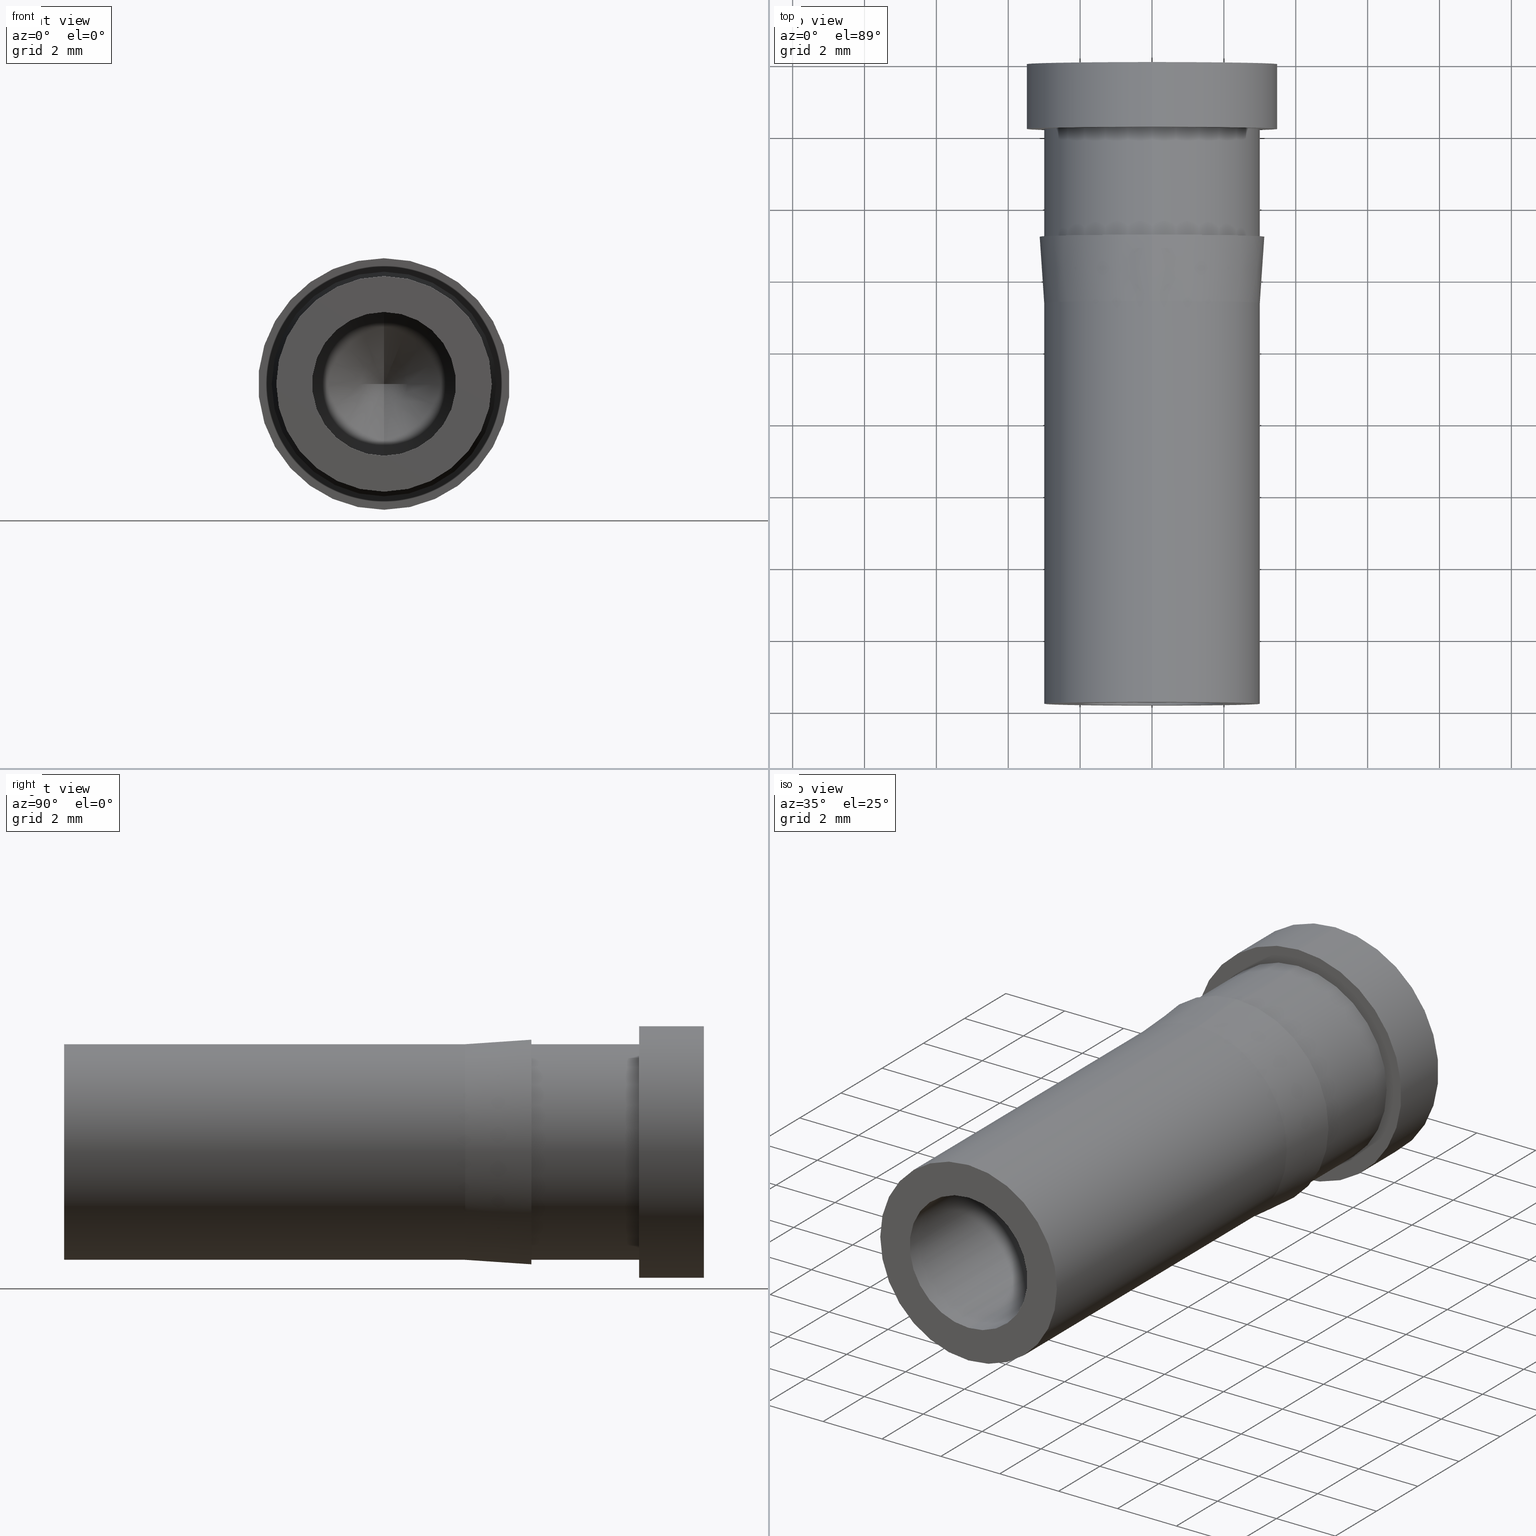
[diagram: canonical four-view strip — front | top / right | iso, engineering-drawing reading convention]
A machine part, canonical four-view strip (front | top / right | iso — engineering-drawing reading convention). The complete STEP part file that produces these views, byte-faithful:
ISO-10303-21;
HEADER;
FILE_DESCRIPTION (( 'STEP AP214' ),
    '1' );
FILE_NAME ('IF-PI-17.8-7.00.STEP',
    '2020-06-08T07:00:58',
    ( '' ),
    ( '' ),
    'SwSTEP 2.0',
    'SolidWorks 2020',
    '' );
FILE_SCHEMA (( 'AUTOMOTIVE_DESIGN' ));
ENDSEC;

DATA;
#1 = DIRECTION ( 'NONE',  ( -0.0000000000000000000, -1.000000000000000000, -0.0000000000000000000 ) ) ;
#2 = AXIS2_PLACEMENT_3D ( 'NONE', #331, #398, #437 ) ;
#3 = CYLINDRICAL_SURFACE ( 'NONE', #92, 1.999999999999999556 ) ;
#4 = DIRECTION ( 'NONE',  ( 0.0000000000000000000, 0.0000000000000000000, -1.000000000000000000 ) ) ;
#5 =( LENGTH_UNIT ( ) NAMED_UNIT ( * ) SI_UNIT ( .MILLI., .METRE. ) );
#6 = EDGE_CURVE ( 'NONE', #196, #360, #18, .T. ) ;
#7 =( GEOMETRIC_REPRESENTATION_CONTEXT ( 3 ) GLOBAL_UNCERTAINTY_ASSIGNED_CONTEXT ( ( #54 ) ) GLOBAL_UNIT_ASSIGNED_CONTEXT ( ( #5, #49, #249 ) ) REPRESENTATION_CONTEXT ( 'NONE', 'WORKASPACE' ) );
#8 = ORIENTED_EDGE ( 'NONE', *, *, #346, .F. ) ;
#9 = AXIS2_PLACEMENT_3D ( 'NONE', #42, #224, #11 ) ;
#10 = SHAPE_DEFINITION_REPRESENTATION ( #108, #191 ) ;
#11 = DIRECTION ( 'NONE',  ( 0.0000000000000000000, 0.0000000000000000000, 1.000000000000000000 ) ) ;
#12 = ORIENTED_EDGE ( 'NONE', *, *, #173, .T. ) ;
#13 = CARTESIAN_POINT ( 'NONE',  ( 0.0000000000000000000, -17.80000000000000071, 0.0000000000000000000 ) ) ;
#14 = VERTEX_POINT ( 'NONE', #291 ) ;
#15 = DIRECTION ( 'NONE',  ( 0.0000000000000000000, 0.0000000000000000000, -1.000000000000000000 ) ) ;
#16 = ORIENTED_EDGE ( 'NONE', *, *, #150, .F. ) ;
#17 = VECTOR ( 'NONE', #181, 1000.000000000000000 ) ;
#18 = CIRCLE ( 'NONE', #404, 2.999999999999999556 ) ;
#19 = ADVANCED_FACE ( 'NONE', ( #88 ), #204, .F. ) ;
#20 = AXIS2_PLACEMENT_3D ( 'NONE', #100, #268, #303 ) ;
#21 = AXIS2_PLACEMENT_3D ( 'NONE', #106, #388, #40 ) ;
#22 = VERTEX_POINT ( 'NONE', #357 ) ;
#23 = CARTESIAN_POINT ( 'NONE',  ( 3.673940397442059868E-16, -17.80000000000000071, 3.000000000000000000 ) ) ;
#24 = VERTEX_POINT ( 'NONE', #428 ) ;
#25 = CARTESIAN_POINT ( 'NONE',  ( 0.0000000000000000000, -6.641797671233707234, 0.0000000000000000000 ) ) ;
#26 = EDGE_CURVE ( 'NONE', #22, #134, #184, .T. ) ;
#27 = ORIENTED_EDGE ( 'NONE', *, *, #367, .T. ) ;
#28 = AXIS2_PLACEMENT_3D ( 'NONE', #286, #41, #424 ) ;
#29 = DIRECTION ( 'NONE',  ( 0.0000000000000000000, 0.0000000000000000000, -1.000000000000000000 ) ) ;
#30 = CIRCLE ( 'NONE', #229, 3.499999999999999112 ) ;
#31 = VERTEX_POINT ( 'NONE', #119 ) ;
#32 = LINE ( 'NONE', #451, #452 ) ;
#33 = CARTESIAN_POINT ( 'NONE',  ( 0.0000000000000000000, -4.800000000000000711, 3.125000000000000000 ) ) ;
#34 = CARTESIAN_POINT ( 'NONE',  ( 0.0000000000000000000, -1.799999999999999600, 0.0000000000000000000 ) ) ;
#35 = AXIS2_PLACEMENT_3D ( 'NONE', #221, #293, #395 ) ;
#36 = LINE ( 'NONE', #391, #17 ) ;
#37 = DIRECTION ( 'NONE',  ( 0.0000000000000000000, 0.0000000000000000000, -1.000000000000000000 ) ) ;
#38 = EDGE_CURVE ( 'NONE', #113, #22, #397, .T. ) ;
#39 = DIRECTION ( 'NONE',  ( -0.0000000000000000000, -1.000000000000000000, -0.0000000000000000000 ) ) ;
#40 = DIRECTION ( 'NONE',  ( 0.0000000000000000000, 0.0000000000000000000, -1.000000000000000000 ) ) ;
#41 = DIRECTION ( 'NONE',  ( 0.0000000000000000000, 0.0000000000000000000, 1.000000000000000000 ) ) ;
#42 = CARTESIAN_POINT ( 'NONE',  ( 0.0000000000000000000, -4.800000000000000711, 0.0000000000000000000 ) ) ;
#43 = ORIENTED_EDGE ( 'NONE', *, *, #279, .T. ) ;
#44 = DIRECTION ( 'NONE',  ( 0.0000000000000000000, 0.0000000000000000000, -1.000000000000000000 ) ) ;
#45 = ORIENTED_EDGE ( 'NONE', *, *, #427, .T. ) ;
#46 = CIRCLE ( 'NONE', #130, 2.999999999999998668 ) ;
#47 = FACE_OUTER_BOUND ( 'NONE', #198, .T. ) ;
#48 = CARTESIAN_POINT ( 'NONE',  ( 0.0000000000000000000, -4.800000000000000711, 3.125000000000000000 ) ) ;
#49 =( NAMED_UNIT ( * ) PLANE_ANGLE_UNIT ( ) SI_UNIT ( $, .RADIAN. ) );
#50 = VERTEX_POINT ( 'NONE', #326 ) ;
#51 = EDGE_CURVE ( 'NONE', #22, #113, #65, .T. ) ;
#52 = CARTESIAN_POINT ( 'NONE',  ( -2.999999999999999556, -4.800000000000000711, 0.0000000000000000000 ) ) ;
#53 = DIRECTION ( 'NONE',  ( 0.0000000000000000000, 1.000000000000000000, 0.0000000000000000000 ) ) ;
#54 = UNCERTAINTY_MEASURE_WITH_UNIT (LENGTH_MEASURE( 1.000000000000000082E-05 ), #5, 'distance_accuracy_value', 'NONE');
#55 = ORIENTED_EDGE ( 'NONE', *, *, #38, .F. ) ;
#56 = VECTOR ( 'NONE', #136, 1000.000000000000000 ) ;
#57 = CARTESIAN_POINT ( 'NONE',  ( 0.0000000000000000000, -17.80000000000000071, -3.000000000000000000 ) ) ;
#58 = EDGE_LOOP ( 'NONE', ( #380, #231 ) ) ;
#59 = ADVANCED_FACE ( 'NONE', ( #263 ), #112, .T. ) ;
#60 = CARTESIAN_POINT ( 'NONE',  ( 0.0000000000000000000, -11.29999999999999893, -1.999999999999999112 ) ) ;
#61 = ORIENTED_EDGE ( 'NONE', *, *, #182, .T. ) ;
#62 = PLANE ( 'NONE',  #218 ) ;
#63 = ORIENTED_EDGE ( 'NONE', *, *, #150, .T. ) ;
#64 = DIRECTION ( 'NONE',  ( -0.0000000000000000000, -1.000000000000000000, -0.0000000000000000000 ) ) ;
#65 = CIRCLE ( 'NONE', #313, 1.999999999999999112 ) ;
#66 = DIRECTION ( 'NONE',  ( -0.0000000000000000000, -1.000000000000000000, -0.0000000000000000000 ) ) ;
#67 = DIRECTION ( 'NONE',  ( 0.0000000000000000000, 0.0000000000000000000, -1.000000000000000000 ) ) ;
#68 = DIRECTION ( 'NONE',  ( -0.0000000000000000000, -1.000000000000000000, -0.0000000000000000000 ) ) ;
#69 = ADVANCED_FACE ( 'NONE', ( #393 ), #324, .F. ) ;
#70 = DIRECTION ( 'NONE',  ( 0.0000000000000000000, 1.000000000000000000, 0.0000000000000000000 ) ) ;
#71 = EDGE_CURVE ( 'NONE', #76, #164, #363, .T. ) ;
#72 = CARTESIAN_POINT ( 'NONE',  ( 0.0000000000000000000, -17.80000000000000071, -3.499999999999999556 ) ) ;
#73 = DIRECTION ( 'NONE',  ( 0.0000000000000000000, 0.0000000000000000000, -1.000000000000000000 ) ) ;
#74 = PRESENTATION_LAYER_ASSIGNMENT (  '', '', ( #248 ) ) ;
#75 = ORIENTED_EDGE ( 'NONE', *, *, #77, .F. ) ;
#76 = VERTEX_POINT ( 'NONE', #299 ) ;
#77 = EDGE_CURVE ( 'NONE', #162, #164, #328, .T. ) ;
#78 = MANIFOLD_SOLID_BREP ( '�4.0 (4) Durchmesser Bohrung1', #412 ) ;
#79 = PRODUCT_CONTEXT ( 'NONE', #317, 'mechanical' ) ;
#80 = DIRECTION ( 'NONE',  ( -0.0000000000000000000, -1.000000000000000000, -0.0000000000000000000 ) ) ;
#81 = SURFACE_SIDE_STYLE ('',( #125 ) ) ;
#82 = MECHANICAL_DESIGN_GEOMETRIC_PRESENTATION_REPRESENTATION (  '', ( #248 ), #7 ) ;
#83 = EDGE_LOOP ( 'NONE', ( #343, #308, #225 ) ) ;
#84 = CIRCLE ( 'NONE', #21, 3.000000000000000000 ) ;
#85 = DIRECTION ( 'NONE',  ( -0.0000000000000000000, -1.000000000000000000, -0.0000000000000000000 ) ) ;
#86 = ORIENTED_EDGE ( 'NONE', *, *, #6, .F. ) ;
#87 = DIRECTION ( 'NONE',  ( 0.0000000000000000000, 0.0000000000000000000, -1.000000000000000000 ) ) ;
#88 = FACE_OUTER_BOUND ( 'NONE', #120, .T. ) ;
#89 = ORIENTED_EDGE ( 'NONE', *, *, #295, .T. ) ;
#90 = CARTESIAN_POINT ( 'NONE',  ( 0.0000000000000000000, -4.800000000000000711, 0.0000000000000000000 ) ) ;
#91 = ORIENTED_EDGE ( 'NONE', *, *, #279, .F. ) ;
#92 = AXIS2_PLACEMENT_3D ( 'NONE', #144, #415, #104 ) ;
#93 = AXIS2_PLACEMENT_3D ( 'NONE', #307, #202, #411 ) ;
#94 = DIRECTION ( 'NONE',  ( 1.049727191138617956E-16, -0.5150380749100550437, 0.8571673007021117785 ) ) ;
#95 = EDGE_LOOP ( 'NONE', ( #430, #189, #132, #8 ) ) ;
#96 = FACE_OUTER_BOUND ( 'NONE', #405, .T. ) ;
#97 = EDGE_LOOP ( 'NONE', ( #89, #300, #16, #213 ) ) ;
#98 = LINE ( 'NONE', #23, #384 ) ;
#99 = AXIS2_PLACEMENT_3D ( 'NONE', #197, #64, #309 ) ;
#100 = CARTESIAN_POINT ( 'NONE',  ( 0.0000000000000000000, -17.80000000000000071, 0.0000000000000000000 ) ) ;
#101 = AXIS2_PLACEMENT_3D ( 'NONE', #34, #68, #67 ) ;
#102 = ADVANCED_FACE ( 'NONE', ( #370 ), #260, .T. ) ;
#103 = CARTESIAN_POINT ( 'NONE',  ( 0.0000000000000000000, -1.799999999999999600, -3.000000000000000000 ) ) ;
#104 = DIRECTION ( 'NONE',  ( 0.0000000000000000000, 0.0000000000000000000, -1.000000000000000000 ) ) ;
#105 = ADVANCED_FACE ( 'NONE', ( #167 ), #163, .F. ) ;
#106 = CARTESIAN_POINT ( 'NONE',  ( 0.0000000000000000000, -1.799999999999999600, 0.0000000000000000000 ) ) ;
#107 = PRESENTATION_LAYER_ASSIGNMENT (  '', '', ( #287 ) ) ;
#108 = PRODUCT_DEFINITION_SHAPE ( 'NONE', 'NONE',  #161 ) ;
#109 = CARTESIAN_POINT ( 'NONE',  ( 0.0000000000000000000, -4.800000000000000711, 0.0000000000000000000 ) ) ;
#110 = CYLINDRICAL_SURFACE ( 'NONE', #296, 2.999999999999999112 ) ;
#111 = PRODUCT_DEFINITION_FORMATION_WITH_SPECIFIED_SOURCE ( 'ANY', '', #281, .NOT_KNOWN. ) ;
#112 = CONICAL_SURFACE ( 'NONE', #9, 3.125000000000000000, 0.06776455880020616773 ) ;
#113 = VERTEX_POINT ( 'NONE', #236 ) ;
#114 = FACE_OUTER_BOUND ( 'NONE', #97, .T. ) ;
#115 =( NAMED_UNIT ( * ) SI_UNIT ( $, .STERADIAN. ) SOLID_ANGLE_UNIT ( ) );
#116 = ORIENTED_EDGE ( 'NONE', *, *, #169, .F. ) ;
#117 = DIRECTION ( 'NONE',  ( 0.0000000000000000000, 0.9977048607670542246, 0.06771270783090126144 ) ) ;
#118 = DIRECTION ( 'NONE',  ( 0.0000000000000000000, -1.000000000000000000, -0.0000000000000000000 ) ) ;
#119 = CARTESIAN_POINT ( 'NONE',  ( 3.750480822388768843E-16, -6.641797671233707234, -2.999999999999999556 ) ) ;
#120 = EDGE_LOOP ( 'NONE', ( #445, #407, #438 ) ) ;
#121 = AXIS2_PLACEMENT_3D ( 'NONE', #25, #170, #311 ) ;
#122 = AXIS2_PLACEMENT_3D ( 'NONE', #149, #366, #401 ) ;
#123 = SURFACE_STYLE_FILL_AREA ( #323 ) ;
#124 = ORIENTED_EDGE ( 'NONE', *, *, #71, .T. ) ;
#125 = SURFACE_STYLE_FILL_AREA ( #425 ) ;
#126 = EDGE_CURVE ( 'NONE', #329, #134, #239, .T. ) ;
#127 = ORIENTED_EDGE ( 'NONE', *, *, #316, .F. ) ;
#128 = FACE_OUTER_BOUND ( 'NONE', #440, .T. ) ;
#129 = ORIENTED_EDGE ( 'NONE', *, *, #180, .T. ) ;
#130 = AXIS2_PLACEMENT_3D ( 'NONE', #199, #446, #339 ) ;
#131 = FACE_BOUND ( 'NONE', #355, .T. ) ;
#132 = ORIENTED_EDGE ( 'NONE', *, *, #367, .F. ) ;
#133 = CARTESIAN_POINT ( 'NONE',  ( 0.0000000000000000000, -6.641797671233707234, 0.0000000000000000000 ) ) ;
#134 = VERTEX_POINT ( 'NONE', #406 ) ;
#135 = EDGE_CURVE ( 'NONE', #50, #269, #46, .T. ) ;
#136 = DIRECTION ( 'NONE',  ( 0.0000000000000000000, -0.5150380749100550437, -0.8571673007021117785 ) ) ;
#137 = AXIS2_PLACEMENT_3D ( 'NONE', #171, #345, #29 ) ;
#138 = DIRECTION ( 'NONE',  ( 0.0000000000000000000, 0.0000000000000000000, 1.000000000000000000 ) ) ;
#139 = DIRECTION ( 'NONE',  ( -0.0000000000000000000, -1.000000000000000000, -0.0000000000000000000 ) ) ;
#140 = EDGE_CURVE ( 'NONE', #162, #31, #306, .T. ) ;
#141 = DIRECTION ( 'NONE',  ( -0.0000000000000000000, -1.000000000000000000, -0.0000000000000000000 ) ) ;
#142 = FACE_BOUND ( 'NONE', #58, .T. ) ;
#143 = VECTOR ( 'NONE', #94, 1000.000000000000000 ) ;
#144 = CARTESIAN_POINT ( 'NONE',  ( 0.0000000000000000000, -17.80000000000000071, 0.0000000000000000000 ) ) ;
#145 = DIRECTION ( 'NONE',  ( -0.0000000000000000000, -1.000000000000000000, -0.0000000000000000000 ) ) ;
#146 = ORIENTED_EDGE ( 'NONE', *, *, #316, .T. ) ;
#147 = VECTOR ( 'NONE', #414, 1000.000000000000000 ) ;
#148 = ORIENTED_EDGE ( 'NONE', *, *, #135, .F. ) ;
#149 = CARTESIAN_POINT ( 'NONE',  ( 0.0000000000000000000, -4.800000000000000711, 0.0000000000000000000 ) ) ;
#150 = EDGE_CURVE ( 'NONE', #400, #24, #30, .T. ) ;
#151 = PLANE ( 'NONE',  #238 ) ;
#152 = DIRECTION ( 'NONE',  ( 0.0000000000000000000, 0.0000000000000000000, -1.000000000000000000 ) ) ;
#153 = UNCERTAINTY_MEASURE_WITH_UNIT (LENGTH_MEASURE( 1.000000000000000082E-05 ), #327, 'distance_accuracy_value', 'NONE');
#154 = FILL_AREA_STYLE_COLOUR ( '', #267 ) ;
#155 = EDGE_LOOP ( 'NONE', ( #378, #185, #61, #86 ) ) ;
#156 = CONICAL_SURFACE ( 'NONE', #179, 1.999999999999999112, 1.029744258676653423 ) ;
#157 = FILL_AREA_STYLE_COLOUR ( '', #450 ) ;
#158 = DIRECTION ( 'NONE',  ( -0.0000000000000000000, -1.000000000000000000, -0.0000000000000000000 ) ) ;
#159 = EDGE_LOOP ( 'NONE', ( #193, #235 ) ) ;
#160 = LINE ( 'NONE', #272, #147 ) ;
#161 = PRODUCT_DEFINITION ( 'UNKNOWN', '', #111, #334 ) ;
#162 = VERTEX_POINT ( 'NONE', #347 ) ;
#163 = CYLINDRICAL_SURFACE ( 'NONE', #20, 1.999999999999999556 ) ;
#164 = VERTEX_POINT ( 'NONE', #33 ) ;
#165 = AXIS2_PLACEMENT_3D ( 'NONE', #390, #283, #277 ) ;
#166 = AXIS2_PLACEMENT_3D ( 'NONE', #435, #53, #138 ) ;
#167 = FACE_OUTER_BOUND ( 'NONE', #168, .T. ) ;
#168 = EDGE_LOOP ( 'NONE', ( #55, #186, #271, #219 ) ) ;
#169 = EDGE_CURVE ( 'NONE', #31, #162, #274, .T. ) ;
#170 = DIRECTION ( 'NONE',  ( -0.0000000000000000000, -1.000000000000000000, -0.0000000000000000000 ) ) ;
#171 = CARTESIAN_POINT ( 'NONE',  ( 0.0000000000000000000, -17.80000000000000071, 0.0000000000000000000 ) ) ;
#172 = DIRECTION ( 'NONE',  ( 0.0000000000000000000, 0.0000000000000000000, -1.000000000000000000 ) ) ;
#173 = EDGE_CURVE ( 'NONE', #371, #196, #98, .T. ) ;
#174 = CARTESIAN_POINT ( 'NONE',  ( 0.0000000000000000000, -17.80000000000000071, -2.999999999999998668 ) ) ;
#175 = ADVANCED_FACE ( 'NONE', ( #96 ), #382, .T. ) ;
#176 = CARTESIAN_POINT ( 'NONE',  ( 0.0000000000000000000, -1.799999999999999600, 0.0000000000000000000 ) ) ;
#177 = CIRCLE ( 'NONE', #432, 3.125000000000000000 ) ;
#178 = PLANE ( 'NONE',  #275 ) ;
#179 = AXIS2_PLACEMENT_3D ( 'NONE', #245, #141, #172 ) ;
#180 = EDGE_CURVE ( 'NONE', #134, #329, #417, .T. ) ;
#181 = DIRECTION ( 'NONE',  ( -0.0000000000000000000, -1.000000000000000000, -0.0000000000000000000 ) ) ;
#182 = EDGE_CURVE ( 'NONE', #325, #360, #234, .T. ) ;
#183 = CARTESIAN_POINT ( 'NONE',  ( 0.0000000000000000000, 0.0000000000000000000, 0.0000000000000000000 ) ) ;
#184 = LINE ( 'NONE', #190, #250 ) ;
#185 = ORIENTED_EDGE ( 'NONE', *, *, #310, .T. ) ;
#186 = ORIENTED_EDGE ( 'NONE', *, *, #208, .T. ) ;
#187 = FACE_OUTER_BOUND ( 'NONE', #200, .T. ) ;
#188 = PRESENTATION_STYLE_ASSIGNMENT (( #254 ) ) ;
#189 = ORIENTED_EDGE ( 'NONE', *, *, #394, .T. ) ;
#190 = CARTESIAN_POINT ( 'NONE',  ( 0.0000000000000000000, -17.80000000000000071, -1.999999999999999556 ) ) ;
#191 = ADVANCED_BREP_SHAPE_REPRESENTATION ( 'IF-PI-17.8-7.00', ( #78, #28 ), #244 ) ;
#192 = CARTESIAN_POINT ( 'NONE',  ( 0.0000000000000000000, -11.29999999999999893, 0.0000000000000000000 ) ) ;
#193 = ORIENTED_EDGE ( 'NONE', *, *, #295, .F. ) ;
#194 = VECTOR ( 'NONE', #442, 1000.000000000000000 ) ;
#195 = DIRECTION ( 'NONE',  ( -0.0000000000000000000, -1.000000000000000000, -0.0000000000000000000 ) ) ;
#196 = VERTEX_POINT ( 'NONE', #379 ) ;
#197 = CARTESIAN_POINT ( 'NONE',  ( 0.0000000000000000000, -17.80000000000000071, 0.0000000000000000000 ) ) ;
#198 = EDGE_LOOP ( 'NONE', ( #426, #338 ) ) ;
#199 = CARTESIAN_POINT ( 'NONE',  ( 0.0000000000000000000, -17.80000000000000071, 0.0000000000000000000 ) ) ;
#200 = EDGE_LOOP ( 'NONE', ( #284, #12, #127, #322 ) ) ;
#201 = DIRECTION ( 'NONE',  ( 0.0000000000000000000, 0.0000000000000000000, -1.000000000000000000 ) ) ;
#202 = DIRECTION ( 'NONE',  ( -0.0000000000000000000, -1.000000000000000000, -0.0000000000000000000 ) ) ;
#203 = CARTESIAN_POINT ( 'NONE',  ( 3.673940397442059868E-16, -1.799999999999999600, 3.000000000000000000 ) ) ;
#204 = CONICAL_SURFACE ( 'NONE', #433, 1.999999999999999112, 1.029744258676653423 ) ;
#205 = FACE_OUTER_BOUND ( 'NONE', #95, .T. ) ;
#206 = DIRECTION ( 'NONE',  ( -0.0000000000000000000, -1.000000000000000000, -0.0000000000000000000 ) ) ;
#207 = DIRECTION ( 'NONE',  ( -0.0000000000000000000, -1.000000000000000000, -0.0000000000000000000 ) ) ;
#208 = EDGE_CURVE ( 'NONE', #113, #329, #32, .T. ) ;
#209 = VECTOR ( 'NONE', #1, 1000.000000000000000 ) ;
#210 = DIRECTION ( 'NONE',  ( -0.0000000000000000000, -1.000000000000000000, -0.0000000000000000000 ) ) ;
#211 = CIRCLE ( 'NONE', #422, 3.000000000000000000 ) ;
#212 = DIRECTION ( 'NONE',  ( -0.0000000000000000000, -1.000000000000000000, -0.0000000000000000000 ) ) ;
#213 = ORIENTED_EDGE ( 'NONE', *, *, #383, .F. ) ;
#214 = EDGE_CURVE ( 'NONE', #289, #22, #449, .T. ) ;
#215 = APPLICATION_PROTOCOL_DEFINITION ( 'draft international standard', 'automotive_design', 1998, #341 ) ;
#216 = AXIS2_PLACEMENT_3D ( 'NONE', #183, #212, #44 ) ;
#217 = EDGE_LOOP ( 'NONE', ( #116, #222, #124, #75 ) ) ;
#218 = AXIS2_PLACEMENT_3D ( 'NONE', #227, #403, #301 ) ;
#219 = ORIENTED_EDGE ( 'NONE', *, *, #26, .F. ) ;
#220 = SURFACE_SIDE_STYLE ('',( #123 ) ) ;
#221 = CARTESIAN_POINT ( 'NONE',  ( 0.0000000000000000000, -2.143131898507868297E-16, 0.0000000000000000000 ) ) ;
#222 = ORIENTED_EDGE ( 'NONE', *, *, #226, .T. ) ;
#223 = CYLINDRICAL_SURFACE ( 'NONE', #273, 3.000000000000000000 ) ;
#224 = DIRECTION ( 'NONE',  ( 0.0000000000000000000, 1.000000000000000000, 0.0000000000000000000 ) ) ;
#225 = ORIENTED_EDGE ( 'NONE', *, *, #51, .T. ) ;
#226 = EDGE_CURVE ( 'NONE', #31, #76, #160, .T. ) ;
#227 = CARTESIAN_POINT ( 'NONE',  ( -3.499999999999999112, -1.800000000000000488, 0.0000000000000000000 ) ) ;
#228 = VERTEX_POINT ( 'NONE', #377 ) ;
#229 = AXIS2_PLACEMENT_3D ( 'NONE', #230, #270, #201 ) ;
#230 = CARTESIAN_POINT ( 'NONE',  ( 0.0000000000000000000, -1.799999999999999600, 0.0000000000000000000 ) ) ;
#231 = ORIENTED_EDGE ( 'NONE', *, *, #126, .F. ) ;
#232 = ADVANCED_FACE ( 'NONE', ( #131, #240 ), #62, .F. ) ;
#233 = ADVANCED_FACE ( 'NONE', ( #128 ), #385, .T. ) ;
#234 = LINE ( 'NONE', #57, #194 ) ;
#235 = ORIENTED_EDGE ( 'NONE', *, *, #427, .F. ) ;
#236 = CARTESIAN_POINT ( 'NONE',  ( 2.449293598294705428E-16, -11.29999999999999893, 1.999999999999999112 ) ) ;
#237 = EDGE_CURVE ( 'NONE', #289, #113, #439, .T. ) ;
#238 = AXIS2_PLACEMENT_3D ( 'NONE', #52, #118, #429 ) ;
#239 = CIRCLE ( 'NONE', #93, 2.000000000000000000 ) ;
#240 = FACE_OUTER_BOUND ( 'NONE', #251, .T. ) ;
#241 = CARTESIAN_POINT ( 'NONE',  ( 0.0000000000000000000, -17.80000000000000071, 0.0000000000000000000 ) ) ;
#242 = EDGE_CURVE ( 'NONE', #325, #371, #84, .T. ) ;
#243 = LINE ( 'NONE', #72, #410 ) ;
#244 =( GEOMETRIC_REPRESENTATION_CONTEXT ( 3 ) GLOBAL_UNCERTAINTY_ASSIGNED_CONTEXT ( ( #153 ) ) GLOBAL_UNIT_ASSIGNED_CONTEXT ( ( #327, #258, #330 ) ) REPRESENTATION_CONTEXT ( 'NONE', 'WORKASPACE' ) );
#245 = CARTESIAN_POINT ( 'NONE',  ( 0.0000000000000000000, -11.29999999999999893, 0.0000000000000000000 ) ) ;
#246 = DIRECTION ( 'NONE',  ( -0.0000000000000000000, -1.000000000000000000, -0.0000000000000000000 ) ) ;
#247 = CARTESIAN_POINT ( 'NONE',  ( 0.0000000000000000000, 0.0000000000000000000, 0.0000000000000000000 ) ) ;
#248 = STYLED_ITEM ( 'NONE', ( #256 ), #191 ) ;
#249 =( NAMED_UNIT ( * ) SI_UNIT ( $, .STERADIAN. ) SOLID_ANGLE_UNIT ( ) );
#250 = VECTOR ( 'NONE', #333, 1000.000000000000000 ) ;
#251 = EDGE_LOOP ( 'NONE', ( #63, #43 ) ) ;
#252 = ADVANCED_FACE ( 'NONE', ( #142, #416 ), #178, .F. ) ;
#253 = DIRECTION ( 'NONE',  ( -0.0000000000000000000, -1.000000000000000000, -0.0000000000000000000 ) ) ;
#254 = SURFACE_STYLE_USAGE ( .BOTH. , #81 ) ;
#255 = ORIENTED_EDGE ( 'NONE', *, *, #208, .F. ) ;
#256 = PRESENTATION_STYLE_ASSIGNMENT (( #421 ) ) ;
#257 = ORIENTED_EDGE ( 'NONE', *, *, #346, .T. ) ;
#258 =( NAMED_UNIT ( * ) PLANE_ANGLE_UNIT ( ) SI_UNIT ( $, .RADIAN. ) );
#259 = DIRECTION ( 'NONE',  ( 0.0000000000000000000, 0.0000000000000000000, -1.000000000000000000 ) ) ;
#260 = CONICAL_SURFACE ( 'NONE', #166, 3.125000000000000000, 0.06776455880020616773 ) ;
#261 =( LENGTH_UNIT ( ) NAMED_UNIT ( * ) SI_UNIT ( .MILLI., .METRE. ) );
#262 = ADVANCED_FACE ( 'NONE', ( #453 ), #156, .F. ) ;
#263 = FACE_OUTER_BOUND ( 'NONE', #217, .T. ) ;
#264 = ORIENTED_EDGE ( 'NONE', *, *, #365, .F. ) ;
#265 = CARTESIAN_POINT ( 'NONE',  ( 2.449293598294705428E-16, -11.29999999999999893, 1.999999999999999112 ) ) ;
#266 = ORIENTED_EDGE ( 'NONE', *, *, #310, .F. ) ;
#267 = COLOUR_RGB ( '',0.9686274509803921573, 0.8784313725490195957, 0.5999999999999999778 ) ;
#268 = DIRECTION ( 'NONE',  ( -0.0000000000000000000, -1.000000000000000000, -0.0000000000000000000 ) ) ;
#269 = VERTEX_POINT ( 'NONE', #174 ) ;
#270 = DIRECTION ( 'NONE',  ( -0.0000000000000000000, -1.000000000000000000, -0.0000000000000000000 ) ) ;
#271 = ORIENTED_EDGE ( 'NONE', *, *, #126, .T. ) ;
#272 = CARTESIAN_POINT ( 'NONE',  ( 3.827021247335478803E-16, -4.800000000000000711, -3.125000000000000000 ) ) ;
#273 = AXIS2_PLACEMENT_3D ( 'NONE', #13, #253, #290 ) ;
#274 = CIRCLE ( 'NONE', #121, 2.999999999999999556 ) ;
#275 = AXIS2_PLACEMENT_3D ( 'NONE', #389, #70, #315 ) ;
#276 = DIRECTION ( 'NONE',  ( -0.0000000000000000000, -1.000000000000000000, -0.0000000000000000000 ) ) ;
#277 = DIRECTION ( 'NONE',  ( 0.0000000000000000000, 0.0000000000000000000, -1.000000000000000000 ) ) ;
#278 = LINE ( 'NONE', #318, #209 ) ;
#279 = EDGE_CURVE ( 'NONE', #24, #400, #353, .T. ) ;
#280 = DIRECTION ( 'NONE',  ( -0.0000000000000000000, -1.000000000000000000, -0.0000000000000000000 ) ) ;
#281 = PRODUCT ( 'IF-PI-17.8-7.00', 'IF-PI-17.8-7.00', '', ( #79 ) ) ;
#282 = DIRECTION ( 'NONE',  ( 0.0000000000000000000, 0.0000000000000000000, -1.000000000000000000 ) ) ;
#283 = DIRECTION ( 'NONE',  ( -0.0000000000000000000, -1.000000000000000000, -0.0000000000000000000 ) ) ;
#284 = ORIENTED_EDGE ( 'NONE', *, *, #242, .T. ) ;
#285 = CIRCLE ( 'NONE', #216, 3.499999999999999556 ) ;
#286 = CARTESIAN_POINT ( 'NONE',  ( 0.0000000000000000000, 0.0000000000000000000, 0.0000000000000000000 ) ) ;
#287 = STYLED_ITEM ( 'NONE', ( #188 ), #78 ) ;
#288 = EDGE_LOOP ( 'NONE', ( #255, #447, #402, #129 ) ) ;
#289 = VERTEX_POINT ( 'NONE', #386 ) ;
#290 = DIRECTION ( 'NONE',  ( 0.0000000000000000000, 0.0000000000000000000, -1.000000000000000000 ) ) ;
#291 = CARTESIAN_POINT ( 'NONE',  ( 4.286263797015736102E-16, 0.0000000000000000000, 3.499999999999999556 ) ) ;
#292 = CARTESIAN_POINT ( 'NONE',  ( 0.0000000000000000000, -1.799999999999999600, -3.499999999999999112 ) ) ;
#293 = DIRECTION ( 'NONE',  ( 0.0000000000000000000, -1.000000000000000000, -0.0000000000000000000 ) ) ;
#294 = EDGE_LOOP ( 'NONE', ( #340, #423, #302, #368 ) ) ;
#295 = EDGE_CURVE ( 'NONE', #228, #14, #413, .T. ) ;
#296 = AXIS2_PLACEMENT_3D ( 'NONE', #241, #246, #4 ) ;
#297 = AXIS2_PLACEMENT_3D ( 'NONE', #419, #206, #37 ) ;
#298 = ORIENTED_EDGE ( 'NONE', *, *, #135, .T. ) ;
#299 = CARTESIAN_POINT ( 'NONE',  ( 3.827021247335478803E-16, -4.800000000000000711, -3.125000000000000000 ) ) ;
#300 = ORIENTED_EDGE ( 'NONE', *, *, #365, .T. ) ;
#301 = DIRECTION ( 'NONE',  ( 0.0000000000000000000, -0.0000000000000000000, 1.000000000000000000 ) ) ;
#302 = ORIENTED_EDGE ( 'NONE', *, *, #77, .T. ) ;
#303 = DIRECTION ( 'NONE',  ( 0.0000000000000000000, 0.0000000000000000000, -1.000000000000000000 ) ) ;
#304 = ORIENTED_EDGE ( 'NONE', *, *, #140, .T. ) ;
#305 = ADVANCED_FACE ( 'NONE', ( #320 ), #418, .T. ) ;
#306 = CIRCLE ( 'NONE', #319, 2.999999999999999556 ) ;
#307 = CARTESIAN_POINT ( 'NONE',  ( 0.0000000000000000000, -17.80000000000000071, 0.0000000000000000000 ) ) ;
#308 = ORIENTED_EDGE ( 'NONE', *, *, #214, .T. ) ;
#309 = DIRECTION ( 'NONE',  ( 0.0000000000000000000, 0.0000000000000000000, -1.000000000000000000 ) ) ;
#310 = EDGE_CURVE ( 'NONE', #371, #325, #211, .T. ) ;
#311 = DIRECTION ( 'NONE',  ( 0.0000000000000000000, 0.0000000000000000000, -1.000000000000000000 ) ) ;
#312 = AXIS2_PLACEMENT_3D ( 'NONE', #332, #358, #87 ) ;
#313 = AXIS2_PLACEMENT_3D ( 'NONE', #364, #80, #259 ) ;
#314 = FACE_OUTER_BOUND ( 'NONE', #288, .T. ) ;
#315 = DIRECTION ( 'NONE',  ( 0.0000000000000000000, -0.0000000000000000000, 1.000000000000000000 ) ) ;
#316 = EDGE_CURVE ( 'NONE', #360, #196, #396, .T. ) ;
#317 = APPLICATION_CONTEXT ( 'automotive_design' ) ;
#318 = CARTESIAN_POINT ( 'NONE',  ( 3.673940397442058882E-16, -17.80000000000000071, 2.999999999999999112 ) ) ;
#319 = AXIS2_PLACEMENT_3D ( 'NONE', #133, #66, #408 ) ;
#320 = FACE_OUTER_BOUND ( 'NONE', #155, .T. ) ;
#321 = DIRECTION ( 'NONE',  ( 0.0000000000000000000, 0.0000000000000000000, -1.000000000000000000 ) ) ;
#322 = ORIENTED_EDGE ( 'NONE', *, *, #182, .F. ) ;
#323 = FILL_AREA_STYLE ('',( #157 ) ) ;
#324 = PLANE ( 'NONE',  #35 ) ;
#325 = VERTEX_POINT ( 'NONE', #103 ) ;
#326 = CARTESIAN_POINT ( 'NONE',  ( 3.673940397442058389E-16, -17.80000000000000071, 2.999999999999998668 ) ) ;
#327 =( LENGTH_UNIT ( ) NAMED_UNIT ( * ) SI_UNIT ( .MILLI., .METRE. ) );
#328 = LINE ( 'NONE', #48, #373 ) ;
#329 = VERTEX_POINT ( 'NONE', #354 ) ;
#330 =( NAMED_UNIT ( * ) SI_UNIT ( $, .STERADIAN. ) SOLID_ANGLE_UNIT ( ) );
#331 = CARTESIAN_POINT ( 'NONE',  ( 0.0000000000000000000, -11.29999999999999893, 0.0000000000000000000 ) ) ;
#332 = CARTESIAN_POINT ( 'NONE',  ( 0.0000000000000000000, -17.80000000000000071, 0.0000000000000000000 ) ) ;
#333 = DIRECTION ( 'NONE',  ( -0.0000000000000000000, -1.000000000000000000, -0.0000000000000000000 ) ) ;
#334 = PRODUCT_DEFINITION_CONTEXT ( 'detailed design', #341, 'design' ) ;
#335 = ORIENTED_EDGE ( 'NONE', *, *, #394, .F. ) ;
#336 = ADVANCED_FACE ( 'NONE', ( #205 ), #110, .T. ) ;
#337 = DIRECTION ( 'NONE',  ( 0.0000000000000000000, 0.0000000000000000000, -1.000000000000000000 ) ) ;
#338 = ORIENTED_EDGE ( 'NONE', *, *, #71, .F. ) ;
#339 = DIRECTION ( 'NONE',  ( 0.0000000000000000000, 0.0000000000000000000, -1.000000000000000000 ) ) ;
#340 = ORIENTED_EDGE ( 'NONE', *, *, #226, .F. ) ;
#341 = APPLICATION_CONTEXT ( 'automotive_design' ) ;
#342 = DIRECTION ( 'NONE',  ( -0.0000000000000000000, -1.000000000000000000, -0.0000000000000000000 ) ) ;
#343 = ORIENTED_EDGE ( 'NONE', *, *, #237, .F. ) ;
#344 = AXIS2_PLACEMENT_3D ( 'NONE', #372, #195, #337 ) ;
#345 = DIRECTION ( 'NONE',  ( -0.0000000000000000000, -1.000000000000000000, -0.0000000000000000000 ) ) ;
#346 = EDGE_CURVE ( 'NONE', #31, #269, #350, .T. ) ;
#347 = CARTESIAN_POINT ( 'NONE',  ( 0.0000000000000000000, -6.641797671233707234, 2.999999999999999556 ) ) ;
#348 = DIRECTION ( 'NONE',  ( 0.0000000000000000000, 0.0000000000000000000, -1.000000000000000000 ) ) ;
#349 = MECHANICAL_DESIGN_GEOMETRIC_PRESENTATION_REPRESENTATION (  '', ( #287 ), #443 ) ;
#350 = LINE ( 'NONE', #351, #381 ) ;
#351 = CARTESIAN_POINT ( 'NONE',  ( 0.0000000000000000000, -17.80000000000000071, -2.999999999999999112 ) ) ;
#352 = CARTESIAN_POINT ( 'NONE',  ( 0.0000000000000000000, -4.800000000000000711, -2.999999999999999556 ) ) ;
#353 = CIRCLE ( 'NONE', #101, 3.499999999999999112 ) ;
#354 = CARTESIAN_POINT ( 'NONE',  ( 2.449293598294706414E-16, -17.80000000000000071, 2.000000000000000000 ) ) ;
#355 = EDGE_LOOP ( 'NONE', ( #431, #266 ) ) ;
#356 = APPLICATION_PROTOCOL_DEFINITION ( 'draft international standard', 'automotive_design', 1998, #317 ) ;
#357 = CARTESIAN_POINT ( 'NONE',  ( 0.0000000000000000000, -11.29999999999999893, -1.999999999999999112 ) ) ;
#358 = DIRECTION ( 'NONE',  ( -0.0000000000000000000, -1.000000000000000000, -0.0000000000000000000 ) ) ;
#359 =( NAMED_UNIT ( * ) PLANE_ANGLE_UNIT ( ) SI_UNIT ( $, .RADIAN. ) );
#360 = VERTEX_POINT ( 'NONE', #352 ) ;
#361 = AXIS2_PLACEMENT_3D ( 'NONE', #109, #139, #321 ) ;
#362 = CYLINDRICAL_SURFACE ( 'NONE', #312, 3.499999999999999556 ) ;
#363 = CIRCLE ( 'NONE', #122, 3.125000000000000000 ) ;
#364 = CARTESIAN_POINT ( 'NONE',  ( 0.0000000000000000000, -11.29999999999999893, 0.0000000000000000000 ) ) ;
#365 = EDGE_CURVE ( 'NONE', #14, #24, #36, .T. ) ;
#366 = DIRECTION ( 'NONE',  ( -0.0000000000000000000, -1.000000000000000000, -0.0000000000000000000 ) ) ;
#367 = EDGE_CURVE ( 'NONE', #269, #50, #441, .T. ) ;
#368 = ORIENTED_EDGE ( 'NONE', *, *, #387, .T. ) ;
#369 = FACE_BOUND ( 'NONE', #399, .T. ) ;
#370 = FACE_OUTER_BOUND ( 'NONE', #294, .T. ) ;
#371 = VERTEX_POINT ( 'NONE', #203 ) ;
#372 = CARTESIAN_POINT ( 'NONE',  ( 0.0000000000000000000, -17.80000000000000071, 0.0000000000000000000 ) ) ;
#373 = VECTOR ( 'NONE', #117, 1000.000000000000000 ) ;
#374 = UNCERTAINTY_MEASURE_WITH_UNIT (LENGTH_MEASURE( 1.000000000000000082E-05 ), #261, 'distance_accuracy_value', 'NONE');
#375 = EDGE_LOOP ( 'NONE', ( #27, #298 ) ) ;
#376 = PRODUCT_RELATED_PRODUCT_CATEGORY ( 'part', '', ( #281 ) ) ;
#377 = CARTESIAN_POINT ( 'NONE',  ( 0.0000000000000000000, 0.0000000000000000000, -3.499999999999999556 ) ) ;
#378 = ORIENTED_EDGE ( 'NONE', *, *, #173, .F. ) ;
#379 = CARTESIAN_POINT ( 'NONE',  ( 3.673940397442059375E-16, -4.800000000000000711, 2.999999999999999556 ) ) ;
#380 = ORIENTED_EDGE ( 'NONE', *, *, #180, .F. ) ;
#381 = VECTOR ( 'NONE', #145, 1000.000000000000000 ) ;
#382 = CYLINDRICAL_SURFACE ( 'NONE', #99, 2.999999999999999112 ) ;
#383 = EDGE_CURVE ( 'NONE', #228, #400, #243, .T. ) ;
#384 = VECTOR ( 'NONE', #342, 1000.000000000000000 ) ;
#385 = CYLINDRICAL_SURFACE ( 'NONE', #344, 3.499999999999999556 ) ;
#386 = CARTESIAN_POINT ( 'NONE',  ( -1.886377652421879229E-15, -10.09827876194487750, 0.0000000000000000000 ) ) ;
#387 = EDGE_CURVE ( 'NONE', #164, #76, #177, .T. ) ;
#388 = DIRECTION ( 'NONE',  ( -0.0000000000000000000, -1.000000000000000000, -0.0000000000000000000 ) ) ;
#389 = CARTESIAN_POINT ( 'NONE',  ( -2.999999999999998668, -17.80000000000000071, 0.0000000000000000000 ) ) ;
#390 = CARTESIAN_POINT ( 'NONE',  ( 0.0000000000000000000, -17.80000000000000071, 0.0000000000000000000 ) ) ;
#391 = CARTESIAN_POINT ( 'NONE',  ( 4.286263797015736102E-16, -17.80000000000000071, 3.499999999999999556 ) ) ;
#392 = ADVANCED_FACE ( 'NONE', ( #314 ), #3, .F. ) ;
#393 = FACE_OUTER_BOUND ( 'NONE', #159, .T. ) ;
#394 = EDGE_CURVE ( 'NONE', #162, #50, #278, .T. ) ;
#395 = DIRECTION ( 'NONE',  ( 0.0000000000000000000, 0.0000000000000000000, -1.000000000000000000 ) ) ;
#396 = CIRCLE ( 'NONE', #361, 2.999999999999999556 ) ;
#397 = CIRCLE ( 'NONE', #2, 1.999999999999999112 ) ;
#398 = DIRECTION ( 'NONE',  ( -0.0000000000000000000, -1.000000000000000000, -0.0000000000000000000 ) ) ;
#399 = EDGE_LOOP ( 'NONE', ( #146, #436 ) ) ;
#400 = VERTEX_POINT ( 'NONE', #292 ) ;
#401 = DIRECTION ( 'NONE',  ( 0.0000000000000000000, 0.0000000000000000000, -1.000000000000000000 ) ) ;
#402 = ORIENTED_EDGE ( 'NONE', *, *, #26, .T. ) ;
#403 = DIRECTION ( 'NONE',  ( 0.0000000000000000000, 1.000000000000000000, 0.0000000000000000000 ) ) ;
#404 = AXIS2_PLACEMENT_3D ( 'NONE', #90, #158, #15 ) ;
#405 = EDGE_LOOP ( 'NONE', ( #335, #304, #257, #148 ) ) ;
#406 = CARTESIAN_POINT ( 'NONE',  ( 0.0000000000000000000, -17.80000000000000071, -2.000000000000000000 ) ) ;
#407 = ORIENTED_EDGE ( 'NONE', *, *, #237, .T. ) ;
#408 = DIRECTION ( 'NONE',  ( 0.0000000000000000000, 0.0000000000000000000, -1.000000000000000000 ) ) ;
#409 = ORIENTED_EDGE ( 'NONE', *, *, #383, .T. ) ;
#410 = VECTOR ( 'NONE', #207, 1000.000000000000000 ) ;
#411 = DIRECTION ( 'NONE',  ( 0.0000000000000000000, 0.0000000000000000000, -1.000000000000000000 ) ) ;
#412 = CLOSED_SHELL ( 'NONE', ( #105, #19, #336, #59, #444, #420, #69, #233, #232, #305, #448, #102, #175, #252, #262, #392 ) ) ;
#413 = CIRCLE ( 'NONE', #434, 3.499999999999999556 ) ;
#414 = DIRECTION ( 'NONE',  ( 8.292415090671314483E-18, 0.9977048607670542246, -0.06771270783090126144 ) ) ;
#415 = DIRECTION ( 'NONE',  ( -0.0000000000000000000, -1.000000000000000000, -0.0000000000000000000 ) ) ;
#416 = FACE_OUTER_BOUND ( 'NONE', #375, .T. ) ;
#417 = CIRCLE ( 'NONE', #137, 2.000000000000000000 ) ;
#418 = CYLINDRICAL_SURFACE ( 'NONE', #297, 3.000000000000000000 ) ;
#419 = CARTESIAN_POINT ( 'NONE',  ( 0.0000000000000000000, -17.80000000000000071, 0.0000000000000000000 ) ) ;
#420 = ADVANCED_FACE ( 'NONE', ( #114 ), #362, .T. ) ;
#421 = SURFACE_STYLE_USAGE ( .BOTH. , #220 ) ;
#422 = AXIS2_PLACEMENT_3D ( 'NONE', #176, #210, #282 ) ;
#423 = ORIENTED_EDGE ( 'NONE', *, *, #140, .F. ) ;
#424 = DIRECTION ( 'NONE',  ( 1.000000000000000000, 0.0000000000000000000, 0.0000000000000000000 ) ) ;
#425 = FILL_AREA_STYLE ('',( #154 ) ) ;
#426 = ORIENTED_EDGE ( 'NONE', *, *, #387, .F. ) ;
#427 = EDGE_CURVE ( 'NONE', #14, #228, #285, .T. ) ;
#428 = CARTESIAN_POINT ( 'NONE',  ( 4.286263797015735609E-16, -1.799999999999999600, 3.499999999999999112 ) ) ;
#429 = DIRECTION ( 'NONE',  ( 0.0000000000000000000, 0.0000000000000000000, -1.000000000000000000 ) ) ;
#430 = ORIENTED_EDGE ( 'NONE', *, *, #169, .T. ) ;
#431 = ORIENTED_EDGE ( 'NONE', *, *, #242, .F. ) ;
#432 = AXIS2_PLACEMENT_3D ( 'NONE', #454, #39, #348 ) ;
#433 = AXIS2_PLACEMENT_3D ( 'NONE', #192, #85, #152 ) ;
#434 = AXIS2_PLACEMENT_3D ( 'NONE', #247, #280, #73 ) ;
#435 = CARTESIAN_POINT ( 'NONE',  ( 0.0000000000000000000, -4.800000000000000711, 0.0000000000000000000 ) ) ;
#436 = ORIENTED_EDGE ( 'NONE', *, *, #6, .T. ) ;
#437 = DIRECTION ( 'NONE',  ( 0.0000000000000000000, 0.0000000000000000000, -1.000000000000000000 ) ) ;
#438 = ORIENTED_EDGE ( 'NONE', *, *, #38, .T. ) ;
#439 = LINE ( 'NONE', #265, #143 ) ;
#440 = EDGE_LOOP ( 'NONE', ( #264, #45, #409, #91 ) ) ;
#441 = CIRCLE ( 'NONE', #165, 2.999999999999998668 ) ;
#442 = DIRECTION ( 'NONE',  ( -0.0000000000000000000, -1.000000000000000000, -0.0000000000000000000 ) ) ;
#443 =( GEOMETRIC_REPRESENTATION_CONTEXT ( 3 ) GLOBAL_UNCERTAINTY_ASSIGNED_CONTEXT ( ( #374 ) ) GLOBAL_UNIT_ASSIGNED_CONTEXT ( ( #261, #359, #115 ) ) REPRESENTATION_CONTEXT ( 'NONE', 'WORKASPACE' ) );
#444 = ADVANCED_FACE ( 'NONE', ( #187 ), #223, .T. ) ;
#445 = ORIENTED_EDGE ( 'NONE', *, *, #214, .F. ) ;
#446 = DIRECTION ( 'NONE',  ( -0.0000000000000000000, -1.000000000000000000, -0.0000000000000000000 ) ) ;
#447 = ORIENTED_EDGE ( 'NONE', *, *, #51, .F. ) ;
#448 = ADVANCED_FACE ( 'NONE', ( #47, #369 ), #151, .F. ) ;
#449 = LINE ( 'NONE', #60, #56 ) ;
#450 = COLOUR_RGB ( '',0.9686274509803921573, 0.8784313725490195957, 0.5999999999999999778 ) ;
#451 = CARTESIAN_POINT ( 'NONE',  ( 2.449293598294705921E-16, -17.80000000000000071, 1.999999999999999556 ) ) ;
#452 = VECTOR ( 'NONE', #276, 1000.000000000000000 ) ;
#453 = FACE_OUTER_BOUND ( 'NONE', #83, .T. ) ;
#454 = CARTESIAN_POINT ( 'NONE',  ( 0.0000000000000000000, -4.800000000000000711, 0.0000000000000000000 ) ) ;
ENDSEC;
END-ISO-10303-21;
